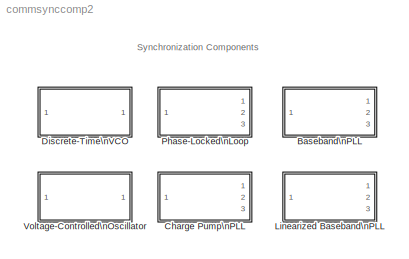
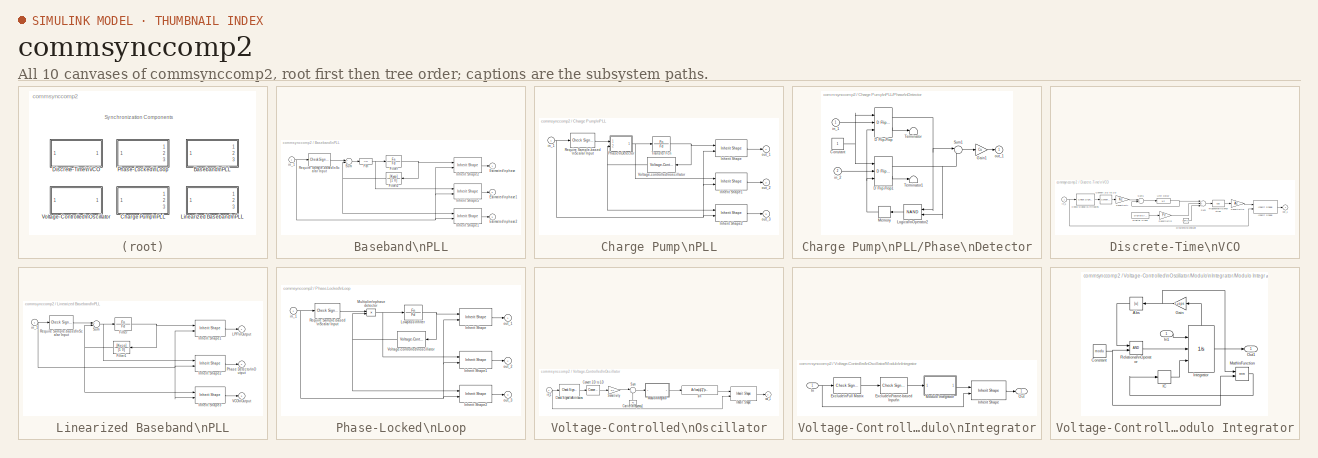
[diagram: thumbnail index - all 10 canvases of the model, root first then tree order]
MODEL commsynccomp2
KIND library
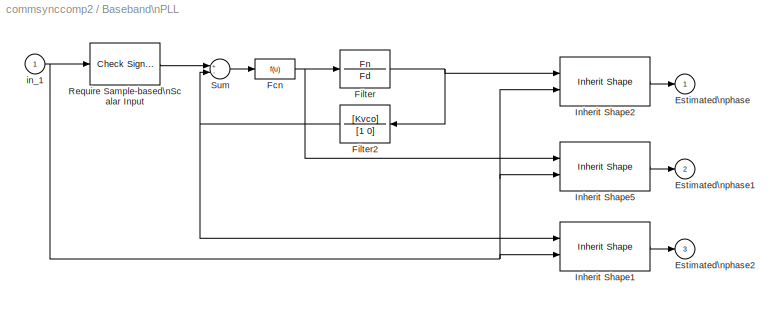
BLOCK [SubSystem] Baseband\nPLL
  MaskCallbackString = ||
  MaskDescription = Implement a baseband model of a phase-locked loop.  The three outputs are the outputs of the lowpass filter, the phase detector, and the voltage controlled oscillator (VCO).  The input must be a sample-based scalar signal.
  MaskDisplay = disp('Baseband\\nPLL')\nport_label('output',1,'Filt');\nport_label('output',2,'PD');\nport_label('output',3,'VCO');
  MaskEnableString = on,on,on
  MaskHelp = helpview(commbhelp)
  MaskIconFrame = on
  MaskIconOpaque = on
  MaskIconRotate = none
  MaskIconUnits = autoscale
  MaskInitialization = pi2=2*pi;
  MaskPromptString = Lowpass filter numerator:|Lowpass filter denominator:|VCO input sensitivity (Hz/V):
  MaskStyleString = edit,edit,edit
  MaskTabNameString = ,,
  MaskToolTipString = on,on,on
  MaskTunableValueString = on,on,on
  MaskType = Baseband PLL
  MaskValueString = [3.0002  0  40002]|[1   67.46   2270.9   40002]|1
  MaskVarAliasString = ,,
  MaskVariables = Fn=@1;Fd=@2;Kvco=@3;
  MaskVisibilityString = on,on,on
  MinAlgLoopOccurrences = off
  Ports = [1, 3]
  PropExecContextAcrossSSBoundary = on
  RTWSystemCode = Auto
  TreatAsAtomicUnit = off
BLOCK [Outport] Baseband\nPLL/Estimated\nphase
  BusOutputAsStruct = off
  IconDisplay = Port number
  InitialOutput = 0
BLOCK [Outport] Baseband\nPLL/Estimated\nphase1
  BusOutputAsStruct = off
  IconDisplay = Port number
  InitialOutput = 0
  Port = 2
BLOCK [Outport] Baseband\nPLL/Estimated\nphase2
  BusOutputAsStruct = off
  IconDisplay = Port number
  InitialOutput = 0
  Port = 3
BLOCK [Fcn] Baseband\nPLL/Fcn
BLOCK [TransferFcn] Baseband\nPLL/Filter
  Denominator = Fd
  Numerator = Fn
BLOCK [TransferFcn] Baseband\nPLL/Filter2
  Denominator = [1 0]
  Numerator = [Kvco]
BLOCK [Reference] Baseband\nPLL/Inherit Shape1  REF=commblksprivate/Inherit Shape
  Ports = [2, 1]
  SourceBlock = commblksprivate/Inherit Shape
  SourceType = Inherit Shape
BLOCK [Reference] Baseband\nPLL/Inherit Shape2  REF=commblksprivate/Inherit Shape
  Ports = [2, 1]
  SourceBlock = commblksprivate/Inherit Shape
  SourceType = Inherit Shape
BLOCK [Reference] Baseband\nPLL/Inherit Shape5  REF=commblksprivate/Inherit Shape
  Ports = [2, 1]
  SourceBlock = commblksprivate/Inherit Shape
  SourceType = Inherit Shape
BLOCK [Reference] Baseband\nPLL/Require Sample-based\nScalar Input  REF=dspsigattribs/Check Signal\nAttributes
  Complexity = Ignore
  DatatypeCheckMethod = Ignore
  DatatypeGeneral = Boolean
  Dimensions = Scalar (1-D or 2-D)
  DimsCheckMethod = Is...
  DtypeFixedSpecific = Any fixed-point
  DtypeFloatSpecific = Any floating-point
  DtypeIntSpecific = Any integer
  Frame = Sample-based
  Ports = [1, 1]
  SampleMode = Ignore
  SigAttribCheckMethod = Does not match attributes exactly
  SourceBlock = dspsigattribs/Check Signal\nAttributes
  SourceType = Check Signal Attributes
BLOCK [Sum] Baseband\nPLL/Sum
  Inputs = +-
  Ports = [2, 1]
BLOCK [Inport] Baseband\nPLL/in_1
  IconDisplay = Port number
  LatchInput = off
BLOCK [SubSystem] Charge Pump\nPLL
  MaskCallbackString = |||||
  MaskDescription = Implement a charge pump phase-locked loop using a digital phase detector.  The three outputs are the outputs of the lowpass filter, the phase detector, and the voltage controlled oscillator (VCO).  The input must be a sample-based scalar signal.
  MaskDisplay = disp('Charge\\nPump\\nPLL')\nport_label('output',1,'Filt');\nport_label('output',2,'PD');\nport_label('output',3,'VCO');
  MaskEnableString = on,on,on,on,on,on
  MaskHelp = helpview(commbhelp)
  MaskIconFrame = on
  MaskIconOpaque = on
  MaskIconRotate = none
  MaskIconUnits = autoscale
  MaskInitialization = Cu=1;
  MaskPromptString = Lowpass filter numerator:|Lowpass filter denominator:|VCO input sensitivity (Hz/V):|VCO quiescent frequency (Hz):|VCO initial phase (rad):|VCO output amplitude (V):
  MaskStyleString = edit,edit,edit,edit,edit,edit
  MaskTabNameString = ,,,,,
  MaskToolTipString = on,on,on,on,on,on
  MaskTunableValueString = on,on,on,on,on,on
  MaskType = Charge Pump PLL
  MaskValueString = [3.0002  0  40002]|[1   67.46   2270.9   40002]|1|100|0|1
  MaskVarAliasString = ,,,,,
  MaskVariables = Fn=@1;Fd=@2;Kvco=@3;Fc=@4;Ph=@5;Ac=@6;
  MaskVisibilityString = on,on,on,on,on,on
  MinAlgLoopOccurrences = off
  Ports = [1, 3]
  PropExecContextAcrossSSBoundary = on
  RTWSystemCode = Auto
  TreatAsAtomicUnit = off
BLOCK [Reference] Charge Pump\nPLL/Inherit Shape  REF=commblksprivate/Inherit Shape
  Ports = [2, 1]
  SourceBlock = commblksprivate/Inherit Shape
  SourceType = Inherit Shape
BLOCK [Reference] Charge Pump\nPLL/Inherit Shape1  REF=commblksprivate/Inherit Shape
  Ports = [2, 1]
  SourceBlock = commblksprivate/Inherit Shape
  SourceType = Inherit Shape
BLOCK [Reference] Charge Pump\nPLL/Inherit Shape2  REF=commblksprivate/Inherit Shape
  Ports = [2, 1]
  SourceBlock = commblksprivate/Inherit Shape
  SourceType = Inherit Shape
BLOCK [SubSystem] Charge Pump\nPLL/Phase\nDetector
  MaskCallbackString = |
  MaskDescription = Phase detector:
  MaskDisplay = disp('Phase\\nDetector')
  MaskEnableString = on,on
  MaskIconFrame = on
  MaskIconOpaque = on
  MaskIconRotate = none
  MaskIconUnits = autoscale
  MaskInitialization = Thre=@1;Cu=@2;lo=[0 0;0 1;1 0;1 0;0 1;0 1;0 0;0 0;1 0;0 0;1 0;0 0;1 0;0 0;0 0;0 0];
  MaskPromptString = Cross zero line threshold:|Charge pump current:
  MaskStyleString = edit,edit
  MaskTabNameString = ,
  MaskToolTipString = on,on
  MaskTunableValueString = on,on
  MaskType = Phase Detector
  MaskValueString = -sqrt(eps)|Cu
  MaskVarAliasString = ,
  MaskVisibilityString = on,on
  MinAlgLoopOccurrences = off
  Ports = [2, 1]
  PropExecContextAcrossSSBoundary = on
  RTWSystemCode = Auto
  TreatAsAtomicUnit = off
BLOCK [Constant] Charge Pump\nPLL/Phase\nDetector/Constant
  OutDataTypeMode = boolean
BLOCK [Reference] Charge Pump\nPLL/Phase\nDetector/D Flip-Flop  REF=simulink_extras/Flip Flops/D Flip-Flop
  Ports = [3, 2]
  SourceBlock = simulink_extras/Flip Flops/D Flip-Flop
  SourceType = DFlipFlop
BLOCK [Reference] Charge Pump\nPLL/Phase\nDetector/D Flip-Flop1  REF=simulink_extras/Flip Flops/D Flip-Flop
  Ports = [3, 2]
  SourceBlock = simulink_extras/Flip Flops/D Flip-Flop
  SourceType = DFlipFlop
BLOCK [Gain] Charge Pump\nPLL/Phase\nDetector/Gain1
  Gain = Cu
BLOCK [Logic] Charge Pump\nPLL/Phase\nDetector/Logical\nOperator2
  Operator = NAND
  Ports = [2, 1]
BLOCK [Memory] Charge Pump\nPLL/Phase\nDetector/Memory
BLOCK [Sum] Charge Pump\nPLL/Phase\nDetector/Sum1
  IconShape = round
  Inputs = |+-
  OutDataTypeMode = double
  Ports = [2, 1]
BLOCK [Terminator] Charge Pump\nPLL/Phase\nDetector/Terminator
BLOCK [Terminator] Charge Pump\nPLL/Phase\nDetector/Terminator1
BLOCK [Inport] Charge Pump\nPLL/Phase\nDetector/in_1
  IconDisplay = Port number
  LatchInput = off
BLOCK [Inport] Charge Pump\nPLL/Phase\nDetector/in_2
  IconDisplay = Port number
  LatchInput = off
  Port = 2
BLOCK [Outport] Charge Pump\nPLL/Phase\nDetector/out_1
  BusOutputAsStruct = off
  IconDisplay = Port number
  InitialOutput = 0
BLOCK [Reference] Charge Pump\nPLL/Require Sample-based \nScalar Input  REF=dspsigattribs/Check Signal\nAttributes
  Complexity = Ignore
  DatatypeCheckMethod = Ignore
  DatatypeGeneral = Boolean
  Dimensions = Scalar (1-D or 2-D)
  DimsCheckMethod = Is...
  DtypeFixedSpecific = Any fixed-point
  DtypeFloatSpecific = Any floating-point
  DtypeIntSpecific = Any integer
  Frame = Sample-based
  Ports = [1, 1]
  SampleMode = Ignore
  SigAttribCheckMethod = Does not match attributes exactly
  SourceBlock = dspsigattribs/Check Signal\nAttributes
  SourceType = Check Signal Attributes
BLOCK [TransferFcn] Charge Pump\nPLL/Transfer Fcn
  Denominator = Fd
  Numerator = Fn
BLOCK [Reference] Charge Pump\nPLL/Voltage-controlled\noscillator  REF=commcontsrc2/Voltage-Controlled\nOscillator
  Ac = Ac
  Fc = Fc
  Kc = Kvco
  Ph = Ph
  Ports = [1, 1]
  SourceBlock = commcontsrc2/Voltage-Controlled\nOscillator
  SourceType = Voltage-Controlled Oscillator
BLOCK [Inport] Charge Pump\nPLL/in_1
  IconDisplay = Port number
  LatchInput = off
BLOCK [Outport] Charge Pump\nPLL/out_1
  BusOutputAsStruct = off
  IconDisplay = Port number
  InitialOutput = 0
BLOCK [Outport] Charge Pump\nPLL/out_2
  BusOutputAsStruct = off
  IconDisplay = Port number
  InitialOutput = 0
  Port = 2
BLOCK [Outport] Charge Pump\nPLL/out_3
  BusOutputAsStruct = off
  IconDisplay = Port number
  InitialOutput = 0
  Port = 3
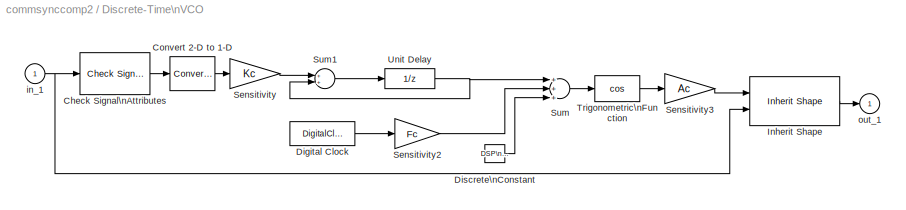
BLOCK [SubSystem] Discrete-Time\nVCO
  MaskCallbackString = ||||
  MaskDescription = Generate a discrete-time output signal whose frequency changes in response to the amplitude variations of the input signal. The input signal must be a scalar.
  MaskDisplay = disp('Discrete-Time\\nVCO')
  MaskEnableString = on,on,on,on,on
  MaskHelp = helpview(commbhelp)
  MaskIconFrame = on
  MaskIconOpaque = on
  MaskIconRotate = none
  MaskIconUnits = autoscale
  MaskInitialization = if ((length(Ac)~=1) | (length(Fc)~=1) | (length(Kc)~=1) | (length(Ph)~=1) | (length(ts)~=1))error('Mask parameters must be scalar values.');end;\npi2=2*pi;Kc=Kc*pi2*ts(1);Fc=Fc*pi2;
  MaskPromptString = Output amplitude (V):|Quiescent frequency (Hz):|Input sensitivity (Hz/V):|Initial phase (rad):|Sample time (s):
  MaskStyleString = edit,edit,edit,edit,edit
  MaskTabNameString = ,,,,
  MaskToolTipString = on,on,on,on,on
  MaskTunableValueString = on,on,on,on,on
  MaskType = Discrete-Time VCO
  MaskValueString = 1|10|1|0|.01
  MaskVarAliasString = ,,,,
  MaskVariables = Ac=@1;Fc=@2;Kc=@3;Ph=@4;ts=@5;
  MaskVisibilityString = on,on,on,on,on
  MinAlgLoopOccurrences = off
  Ports = [1, 1]
  PropExecContextAcrossSSBoundary = on
  RTWSystemCode = Auto
  TreatAsAtomicUnit = off
BLOCK [Reference] Discrete-Time\nVCO/Check Signal\nAttributes  REF=dspsigattribs/Check Signal\nAttributes
  Complexity = Ignore
  DatatypeCheckMethod = Ignore
  DatatypeGeneral = Boolean
  Dimensions = Scalar (1-D or 2-D)
  DimsCheckMethod = Is...
  DtypeFixedSpecific = Any fixed-point
  DtypeFloatSpecific = Any floating-point
  DtypeIntSpecific = Any integer
  Frame = Ignore
  Ports = [1, 1]
  SampleMode = Ignore
  SigAttribCheckMethod = Does not match attributes exactly
  SourceBlock = dspsigattribs/Check Signal\nAttributes
  SourceType = Check Signal Attributes
BLOCK [Reference] Discrete-Time\nVCO/Convert 2-D to 1-D  REF=dspsigattribs/Convert 2-D to 1-D
  Ports = [1, 1]
  SourceBlock = dspsigattribs/Convert 2-D to 1-D
  SourceType = Convert 2-D to 1-D
BLOCK [DigitalClock] Discrete-Time\nVCO/Digital Clock
  SampleTime = ts
BLOCK [Reference] Discrete-Time\nVCO/Discrete\nConstant  REF=dspsrcs4/DSP\nConstant
  FramebasedOutput = off
  InterpretAs1D = on
  Ports = [0, 1]
  SampleMode = Discrete
  SourceBlock = dspsrcs4/DSP\nConstant
  SourceType = DSP Constant
  Ts = ts
  Value = Ph
  additionalParams = off
  allowOverrides = on
  continuousOutput = Sample-based
  dataType = Inherit from 'Constant value'
  discreteOutput = Sample-based (interpret vectors as 1-D)
  fracBitsMode = Best precision
  framePeriod = ts
  numFracBits = 15
  sampTime = ts
  udDataType = sfix(16)
  wordLen = 16
BLOCK [Reference] Discrete-Time\nVCO/Inherit Shape  REF=commblksprivate/Inherit Shape
  Ports = [2, 1]
  SourceBlock = commblksprivate/Inherit Shape
  SourceType = Inherit Shape
BLOCK [Gain] Discrete-Time\nVCO/Sensitivity
  Gain = Kc
BLOCK [Gain] Discrete-Time\nVCO/Sensitivity2
  Gain = Fc
BLOCK [Gain] Discrete-Time\nVCO/Sensitivity3
  Gain = Ac
BLOCK [Sum] Discrete-Time\nVCO/Sum
  Inputs = +++
  Ports = [3, 1]
BLOCK [Sum] Discrete-Time\nVCO/Sum1
  Ports = [2, 1]
BLOCK [Trigonometry] Discrete-Time\nVCO/Trigonometric\nFunction
  Operator = cos
  Ports = [1, 1]
BLOCK [UnitDelay] Discrete-Time\nVCO/Unit Delay
  SampleTime = ts
BLOCK [Inport] Discrete-Time\nVCO/in_1
  IconDisplay = Port number
  LatchInput = off
BLOCK [Outport] Discrete-Time\nVCO/out_1
  BusOutputAsStruct = off
  IconDisplay = Port number
  InitialOutput = 0
BLOCK [SubSystem] Linearized Baseband\nPLL
  MaskCallbackString = ||
  MaskDescription = Implement a linearized baseband model of a phase-locked loop.  The three outputs are the outputs of the lowpass filter, the phase detector, and the voltage controlled oscillator (VCO).  The input must be a sample-based scalar signal.
  MaskDisplay = disp('Linearized\\nBaseband\\nPLL')\nport_label('output',1,'Filt');\nport_label('output',2,'PD');\nport_label('output',3,'VCO');
  MaskEnableString = on,on,on
  MaskHelp = helpview(commbhelp)
  MaskIconFrame = on
  MaskIconOpaque = on
  MaskIconRotate = none
  MaskIconUnits = autoscale
  MaskInitialization = pi2=2*pi;
  MaskPromptString = Lowpass filter numerator:|Lowpass filter denominator:|VCO input sensitivity (Hz/V):
  MaskStyleString = edit,edit,edit
  MaskTabNameString = ,,
  MaskToolTipString = on,on,on
  MaskTunableValueString = on,on,on
  MaskType = Linearized Baseband PLL
  MaskValueString = [3.0002  0  40002]|[1   67.46   2270.9   40002]|1
  MaskVarAliasString = ,,
  MaskVariables = Fn=@1;Fd=@2;Kvco=@3;
  MaskVisibilityString = on,on,on
  MinAlgLoopOccurrences = off
  Ports = [1, 3]
  PropExecContextAcrossSSBoundary = on
  RTWSystemCode = Auto
  TreatAsAtomicUnit = off
BLOCK [TransferFcn] Linearized Baseband\nPLL/Filter
  Denominator = Fd
  Numerator = Fn
BLOCK [TransferFcn] Linearized Baseband\nPLL/Filter1
  Denominator = [1 0]
  Numerator = [Kvco]
BLOCK [Reference] Linearized Baseband\nPLL/Inherit Shape1  REF=commblksprivate/Inherit Shape
  Ports = [2, 1]
  SourceBlock = commblksprivate/Inherit Shape
  SourceType = Inherit Shape
BLOCK [Reference] Linearized Baseband\nPLL/Inherit Shape2  REF=commblksprivate/Inherit Shape
  Ports = [2, 1]
  SourceBlock = commblksprivate/Inherit Shape
  SourceType = Inherit Shape
BLOCK [Reference] Linearized Baseband\nPLL/Inherit Shape3  REF=commblksprivate/Inherit Shape
  Ports = [2, 1]
  SourceBlock = commblksprivate/Inherit Shape
  SourceType = Inherit Shape
BLOCK [Outport] Linearized Baseband\nPLL/LPF\nOutput
  BusOutputAsStruct = off
  IconDisplay = Port number
  InitialOutput = 0
BLOCK [Outport] Linearized Baseband\nPLL/Phase Detector\nOutput
  BusOutputAsStruct = off
  IconDisplay = Port number
  InitialOutput = 0
  Port = 2
BLOCK [Reference] Linearized Baseband\nPLL/Require Sample-based\nScalar Input  REF=dspsigattribs/Check Signal\nAttributes
  Complexity = Ignore
  DatatypeCheckMethod = Ignore
  DatatypeGeneral = Boolean
  Dimensions = Scalar (1-D or 2-D)
  DimsCheckMethod = Is...
  DtypeFixedSpecific = Any fixed-point
  DtypeFloatSpecific = Any floating-point
  DtypeIntSpecific = Any integer
  Frame = Sample-based
  Ports = [1, 1]
  SampleMode = Ignore
  SigAttribCheckMethod = Does not match attributes exactly
  SourceBlock = dspsigattribs/Check Signal\nAttributes
  SourceType = Check Signal Attributes
BLOCK [Sum] Linearized Baseband\nPLL/Sum
  Inputs = +-
  Ports = [2, 1]
BLOCK [Outport] Linearized Baseband\nPLL/VCO\nOutput
  BusOutputAsStruct = off
  IconDisplay = Port number
  InitialOutput = 0
  Port = 3
BLOCK [Inport] Linearized Baseband\nPLL/in_1
  IconDisplay = Port number
  LatchInput = off
BLOCK [SubSystem] Phase-Locked\nLoop
  MaskCallbackString = |||||
  MaskDescription = Implement a phase-locked loop.  The three outputs are:  the lowpass filter output, the phase detector output, and the voltage controlled oscillator (VCO) output.  The input must be a sample-based scalar signal.
  MaskDisplay = disp('PLL')\nport_label('output',1,'Filt');\nport_label('output',2,'PD');\nport_label('output',3,'VCO');
  MaskEnableString = on,on,on,on,on,on
  MaskHelp = helpview(commbhelp)
  MaskIconFrame = on
  MaskIconOpaque = on
  MaskIconRotate = none
  MaskIconUnits = autoscale
  MaskPromptString = Lowpass filter numerator:|Lowpass filter denominator:|VCO input sensitivity (Hz/V):|VCO quiescent frequency (Hz):|VCO initial phase (rad):|VCO output amplitude (V):
  MaskStyleString = edit,edit,edit,edit,edit,edit
  MaskTabNameString = ,,,,,
  MaskToolTipString = on,on,on,on,on,on
  MaskTunableValueString = on,on,on,on,on,on
  MaskType = Phase-Locked Loop
  MaskValueString = [3.0002  0  40002]|[1   67.46   2270.9   40002]|1|100|0|1
  MaskVarAliasString = ,,,,,
  MaskVariables = Fn=@1;Fd=@2;Kvco=@3;Fc=@4;Ph=@5;Ac=@6;
  MaskVisibilityString = on,on,on,on,on,on
  MinAlgLoopOccurrences = off
  Ports = [1, 3]
  PropExecContextAcrossSSBoundary = on
  RTWSystemCode = Auto
  TreatAsAtomicUnit = off
BLOCK [Reference] Phase-Locked\nLoop/Inherit Shape  REF=commblksprivate/Inherit Shape
  Ports = [2, 1]
  SourceBlock = commblksprivate/Inherit Shape
  SourceType = Inherit Shape
BLOCK [Reference] Phase-Locked\nLoop/Inherit Shape1  REF=commblksprivate/Inherit Shape
  Ports = [2, 1]
  SourceBlock = commblksprivate/Inherit Shape
  SourceType = Inherit Shape
BLOCK [Reference] Phase-Locked\nLoop/Inherit Shape2  REF=commblksprivate/Inherit Shape
  Ports = [2, 1]
  SourceBlock = commblksprivate/Inherit Shape
  SourceType = Inherit Shape
BLOCK [TransferFcn] Phase-Locked\nLoop/Lowpass\nfilter
  Denominator = Fd
  Numerator = Fn
BLOCK [Product] Phase-Locked\nLoop/Multiplier\nphase detector
  Ports = [2, 1]
  RndMeth = Floor
BLOCK [Reference] Phase-Locked\nLoop/Require Sample-based \nScalar Input  REF=dspsigattribs/Check Signal\nAttributes
  Complexity = Ignore
  DatatypeCheckMethod = Ignore
  DatatypeGeneral = Boolean
  Dimensions = Scalar (1-D or 2-D)
  DimsCheckMethod = Is...
  DtypeFixedSpecific = Any fixed-point
  DtypeFloatSpecific = Any floating-point
  DtypeIntSpecific = Any integer
  Frame = Sample-based
  Ports = [1, 1]
  SampleMode = Ignore
  SigAttribCheckMethod = Does not match attributes exactly
  SourceBlock = dspsigattribs/Check Signal\nAttributes
  SourceType = Check Signal Attributes
BLOCK [Reference] Phase-Locked\nLoop/Voltage-controlled\noscillator  REF=commcontsrc2/Voltage-Controlled\nOscillator
  Ac = Ac
  Fc = Fc
  Kc = Kvco
  Ph = Ph
  Ports = [1, 1]
  SourceBlock = commcontsrc2/Voltage-Controlled\nOscillator
  SourceType = Voltage-Controlled Oscillator
BLOCK [Inport] Phase-Locked\nLoop/in_1
  IconDisplay = Port number
  LatchInput = off
BLOCK [Outport] Phase-Locked\nLoop/out_1
  BusOutputAsStruct = off
  IconDisplay = Port number
  InitialOutput = 0
BLOCK [Outport] Phase-Locked\nLoop/out_2
  BusOutputAsStruct = off
  IconDisplay = Port number
  InitialOutput = 0
  Port = 2
BLOCK [Outport] Phase-Locked\nLoop/out_3
  BusOutputAsStruct = off
  IconDisplay = Port number
  InitialOutput = 0
  Port = 3
BLOCK [SubSystem] Voltage-Controlled\nOscillator
  MaskCallbackString = |||
  MaskDescription = Generate a continuous-time output signal whose frequency changes in response to the amplitude variations of the input signal. The input signal must be a sample-based scalar.
  MaskDisplay = disp('VCO')
  MaskEnableString = on,on,on,on
  MaskHelp = helpview(commbhelp)
  MaskIconFrame = on
  MaskIconOpaque = on
  MaskIconRotate = none
  MaskIconUnits = autoscale
  MaskInitialization = if ((length(Ac)~=1) | (length(Fc)~=1) | (length(Ph)~=1) | (length(Kc)~=1) )error('Mask parameters must be scalar values.');end;\npi2=2*pi;
  MaskPromptString = Output amplitude (V):|Quiescent frequency (Hz):|Input sensitivity (Hz/V):|Initial phase (rad):
  MaskStyleString = edit,edit,edit,edit
  MaskTabNameString = ,,,
  MaskToolTipString = on,on,on,on
  MaskTunableValueString = on,on,on,on
  MaskType = Voltage-Controlled Oscillator
  MaskValueString = 1|10|1|0
  MaskVarAliasString = ,,,
  MaskVariables = Ac=@1;Fc=@2;Kc=@3;Ph=@4;
  MaskVisibilityString = on,on,on,on
  MinAlgLoopOccurrences = off
  Ports = [1, 1]
  PropExecContextAcrossSSBoundary = on
  RTWSystemCode = Auto
  TreatAsAtomicUnit = off
BLOCK [Constant] Voltage-Controlled\nOscillator/Carrier\nfrequency1
  Value = Fc
BLOCK [Reference] Voltage-Controlled\nOscillator/Check Signal\nAttributes  REF=dspsigattribs/Check Signal\nAttributes
  Complexity = Ignore
  DatatypeCheckMethod = Ignore
  DatatypeGeneral = Boolean
  Dimensions = Scalar (1-D or 2-D)
  DimsCheckMethod = Is...
  DtypeFixedSpecific = Any fixed-point
  DtypeFloatSpecific = Any floating-point
  DtypeIntSpecific = Any integer
  Frame = Sample-based
  Ports = [1, 1]
  SampleMode = Ignore
  SigAttribCheckMethod = Does not match attributes exactly
  SourceBlock = dspsigattribs/Check Signal\nAttributes
  SourceType = Check Signal Attributes
BLOCK [Reference] Voltage-Controlled\nOscillator/Convert 2-D to 1-D  REF=dspsigattribs/Convert 2-D to 1-D
  Ports = [1, 1]
  SourceBlock = dspsigattribs/Convert 2-D to 1-D
  SourceType = Convert 2-D to 1-D
BLOCK [Reference] Voltage-Controlled\nOscillator/Inherit Shape  REF=commblksprivate/Inherit Shape
  Ports = [2, 1]
  SourceBlock = commblksprivate/Inherit Shape
  SourceType = Inherit Shape
BLOCK [SubSystem] Voltage-Controlled\nOscillator/Modulo\nIntegrator
  MaskCallbackString = |
  MaskDescription = Integrate the input signal in continuous time and then uses the Absolute value bound parameter, K, to produce output strictly between -K and K. The block uses the rem function in MATLAB.\n\nThe input must be sample-based.
  MaskDisplay = disp('Modulo\\nIntegrator')
  MaskEnableString = on,on
  MaskHelp = helpview(commbhelp)
  MaskIconFrame = on
  MaskIconOpaque = on
  MaskIconRotate = none
  MaskIconUnits = autoscale
  MaskInitialization = [modu, init]=commblkmodint(gcb);\n
  MaskPromptString = Absolute value bound:|Initial condition:
  MaskStyleString = edit,edit
  MaskTabNameString = ,
  MaskToolTipString = on,on
  MaskTunableValueString = on,on
  MaskType = Modulo Integrator
  MaskValueString = 1|0
  MaskVarAliasString = ,
  MaskVariables = modu=@1;init=@2;
  MaskVisibilityString = on,on
  MinAlgLoopOccurrences = off
  Ports = [1, 1]
  PropExecContextAcrossSSBoundary = on
  RTWSystemCode = Auto
  TreatAsAtomicUnit = off
BLOCK [Reference] Voltage-Controlled\nOscillator/Modulo\nIntegrator/Exclude\nFrame-based Input\n  REF=dspsigattribs/Check Signal\nAttributes
  Complexity = Ignore
  DatatypeCheckMethod = Ignore
  DatatypeGeneral = Boolean
  Dimensions = Scalar (1-D or 2-D)
  DimsCheckMethod = Ignore
  DtypeFixedSpecific = Any fixed-point
  DtypeFloatSpecific = Any floating-point
  DtypeIntSpecific = Any integer
  Frame = Frame-based
  Ports = [1, 1]
  SampleMode = Ignore
  SigAttribCheckMethod = Matches attributes exactly
  SourceBlock = dspsigattribs/Check Signal\nAttributes
  SourceType = Check Signal Attributes
BLOCK [Reference] Voltage-Controlled\nOscillator/Modulo\nIntegrator/Exclude\nFull Matrix  REF=dspsigattribs/Check Signal\nAttributes
  Complexity = Ignore
  DatatypeCheckMethod = Ignore
  DatatypeGeneral = Boolean
  Dimensions = Full matrix (2-D)
  DimsCheckMethod = Is...
  DtypeFixedSpecific = Any fixed-point
  DtypeFloatSpecific = Any floating-point
  DtypeIntSpecific = Any integer
  Frame = Ignore
  Ports = [1, 1]
  SampleMode = Ignore
  SigAttribCheckMethod = Matches attributes exactly
  SourceBlock = dspsigattribs/Check Signal\nAttributes
  SourceType = Check Signal Attributes
BLOCK [Inport] Voltage-Controlled\nOscillator/Modulo\nIntegrator/In
  IconDisplay = Port number
  LatchInput = off
BLOCK [Reference] Voltage-Controlled\nOscillator/Modulo\nIntegrator/Inherit Shape  REF=commblksprivate/Inherit Shape
  Ports = [2, 1]
  SourceBlock = commblksprivate/Inherit Shape
  SourceType = Inherit Shape
BLOCK [SubSystem] Voltage-Controlled\nOscillator/Modulo\nIntegrator/Modulo Integrator
  MinAlgLoopOccurrences = off
  Ports = [1, 1]
  PropExecContextAcrossSSBoundary = on
  RTWSystemCode = Auto
  TreatAsAtomicUnit = off
BLOCK [Abs] Voltage-Controlled\nOscillator/Modulo\nIntegrator/Modulo Integrator/Abs
BLOCK [Constant] Voltage-Controlled\nOscillator/Modulo\nIntegrator/Modulo Integrator/Constant
  Value = modu
BLOCK [Gain] Voltage-Controlled\nOscillator/Modulo\nIntegrator/Modulo Integrator/Gain
  Gain = 1+eps
BLOCK [InitialCondition] Voltage-Controlled\nOscillator/Modulo\nIntegrator/Modulo Integrator/IC
  Value = init
BLOCK [Inport] Voltage-Controlled\nOscillator/Modulo\nIntegrator/Modulo Integrator/In1
  IconDisplay = Port number
  LatchInput = off
BLOCK [Integrator] Voltage-Controlled\nOscillator/Modulo\nIntegrator/Modulo Integrator/Integrator
  ExternalReset = rising
  InitialConditionSource = external
  LowerSaturationLimit = 0
  Ports = [3, 1, 0, 0, 1]
  ShowStatePort = on
  UpperSaturationLimit = 1
BLOCK [Math] Voltage-Controlled\nOscillator/Modulo\nIntegrator/Modulo Integrator/Math\nFunction
  Operator = rem
  Ports = [2, 1]
BLOCK [Outport] Voltage-Controlled\nOscillator/Modulo\nIntegrator/Modulo Integrator/Out1
  BusOutputAsStruct = off
  IconDisplay = Port number
BLOCK [RelationalOperator] Voltage-Controlled\nOscillator/Modulo\nIntegrator/Modulo Integrator/Relational\nOperator
BLOCK [Outport] Voltage-Controlled\nOscillator/Modulo\nIntegrator/Out
  BusOutputAsStruct = off
  IconDisplay = Port number
BLOCK [Gain] Voltage-Controlled\nOscillator/Sensitivity
  Gain = Kc
BLOCK [Sum] Voltage-Controlled\nOscillator/Sum
  IconShape = round
  Inputs = |++
  Ports = [2, 1]
BLOCK [Inport] Voltage-Controlled\nOscillator/in_1
  IconDisplay = Port number
  LatchInput = off
BLOCK [Outport] Voltage-Controlled\nOscillator/out_1
  BusOutputAsStruct = off
  IconDisplay = Port number
  InitialOutput = 0
BLOCK [Fcn] Voltage-Controlled\nOscillator/sin
  Expr = Ac*cos(u[1]*pi2+Ph)
ANNOTATION (root): Synchronization Components
NET Baseband\nPLL/Fcn:1 -> Baseband\nPLL/Filter:1, Baseband\nPLL/Inherit Shape5:1
NET Baseband\nPLL/Filter2:1 -> Baseband\nPLL/Inherit Shape1:1, Baseband\nPLL/Sum:2
NET Baseband\nPLL/Filter:1 -> Baseband\nPLL/Filter2:1, Baseband\nPLL/Inherit Shape2:1
LINE Baseband\nPLL/Inherit Shape1:1 -> Baseband\nPLL/Estimated\nphase2:1
LINE Baseband\nPLL/Inherit Shape2:1 -> Baseband\nPLL/Estimated\nphase:1
LINE Baseband\nPLL/Inherit Shape5:1 -> Baseband\nPLL/Estimated\nphase1:1
LINE Baseband\nPLL/Require Sample-based\nScalar Input:1 -> Baseband\nPLL/Sum:1
LINE Baseband\nPLL/Sum:1 -> Baseband\nPLL/Fcn:1
NET Baseband\nPLL/in_1:1 -> Baseband\nPLL/Inherit Shape1:2, Baseband\nPLL/Inherit Shape2:2, Baseband\nPLL/Inherit Shape5:2, Baseband\nPLL/Require Sample-based\nScalar Input:1
LINE Charge Pump\nPLL/Inherit Shape1:1 -> Charge Pump\nPLL/out_2:1
LINE Charge Pump\nPLL/Inherit Shape2:1 -> Charge Pump\nPLL/out_3:1
LINE Charge Pump\nPLL/Inherit Shape:1 -> Charge Pump\nPLL/out_1:1
NET Charge Pump\nPLL/Phase\nDetector/Constant:1 -> Charge Pump\nPLL/Phase\nDetector/D Flip-Flop1:1, Charge Pump\nPLL/Phase\nDetector/D Flip-Flop:1
NET Charge Pump\nPLL/Phase\nDetector/D Flip-Flop1:1 -> Charge Pump\nPLL/Phase\nDetector/Logical\nOperator2:2, Charge Pump\nPLL/Phase\nDetector/Sum1:2
LINE Charge Pump\nPLL/Phase\nDetector/D Flip-Flop1:2 -> Charge Pump\nPLL/Phase\nDetector/Terminator1:1
NET Charge Pump\nPLL/Phase\nDetector/D Flip-Flop:1 -> Charge Pump\nPLL/Phase\nDetector/Logical\nOperator2:1, Charge Pump\nPLL/Phase\nDetector/Sum1:1
LINE Charge Pump\nPLL/Phase\nDetector/D Flip-Flop:2 -> Charge Pump\nPLL/Phase\nDetector/Terminator:1
LINE Charge Pump\nPLL/Phase\nDetector/Gain1:1 -> Charge Pump\nPLL/Phase\nDetector/out_1:1
LINE Charge Pump\nPLL/Phase\nDetector/Logical\nOperator2:1 -> Charge Pump\nPLL/Phase\nDetector/Memory:1
NET Charge Pump\nPLL/Phase\nDetector/Memory:1 -> Charge Pump\nPLL/Phase\nDetector/D Flip-Flop1:3, Charge Pump\nPLL/Phase\nDetector/D Flip-Flop:3
LINE Charge Pump\nPLL/Phase\nDetector/Sum1:1 -> Charge Pump\nPLL/Phase\nDetector/Gain1:1
LINE Charge Pump\nPLL/Phase\nDetector/in_1:1 -> Charge Pump\nPLL/Phase\nDetector/D Flip-Flop:2
LINE Charge Pump\nPLL/Phase\nDetector/in_2:1 -> Charge Pump\nPLL/Phase\nDetector/D Flip-Flop1:2
NET Charge Pump\nPLL/Phase\nDetector:1 -> Charge Pump\nPLL/Inherit Shape1:1, Charge Pump\nPLL/Transfer Fcn:1
LINE Charge Pump\nPLL/Require Sample-based \nScalar Input:1 -> Charge Pump\nPLL/Phase\nDetector:1
NET Charge Pump\nPLL/Transfer Fcn:1 -> Charge Pump\nPLL/Inherit Shape:1, Charge Pump\nPLL/Voltage-controlled\noscillator:1
NET Charge Pump\nPLL/Voltage-controlled\noscillator:1 -> Charge Pump\nPLL/Inherit Shape2:1, Charge Pump\nPLL/Phase\nDetector:2
NET Charge Pump\nPLL/in_1:1 -> Charge Pump\nPLL/Inherit Shape1:2, Charge Pump\nPLL/Inherit Shape2:2, Charge Pump\nPLL/Inherit Shape:2, Charge Pump\nPLL/Require Sample-based \nScalar Input:1
LINE Discrete-Time\nVCO/Check Signal\nAttributes:1 -> Discrete-Time\nVCO/Convert 2-D to 1-D:1
LINE Discrete-Time\nVCO/Convert 2-D to 1-D:1 -> Discrete-Time\nVCO/Sensitivity:1
LINE Discrete-Time\nVCO/Digital Clock:1 -> Discrete-Time\nVCO/Sensitivity2:1
LINE Discrete-Time\nVCO/Discrete\nConstant:1 -> Discrete-Time\nVCO/Sum:3
LINE Discrete-Time\nVCO/Inherit Shape:1 -> Discrete-Time\nVCO/out_1:1
LINE Discrete-Time\nVCO/Sensitivity2:1 -> Discrete-Time\nVCO/Sum:2
LINE Discrete-Time\nVCO/Sensitivity3:1 -> Discrete-Time\nVCO/Inherit Shape:1
LINE Discrete-Time\nVCO/Sensitivity:1 -> Discrete-Time\nVCO/Sum1:1
LINE Discrete-Time\nVCO/Sum1:1 -> Discrete-Time\nVCO/Unit Delay:1
LINE Discrete-Time\nVCO/Sum:1 -> Discrete-Time\nVCO/Trigonometric\nFunction:1
LINE Discrete-Time\nVCO/Trigonometric\nFunction:1 -> Discrete-Time\nVCO/Sensitivity3:1
NET Discrete-Time\nVCO/Unit Delay:1 -> Discrete-Time\nVCO/Sum1:2, Discrete-Time\nVCO/Sum:1
NET Discrete-Time\nVCO/in_1:1 -> Discrete-Time\nVCO/Check Signal\nAttributes:1, Discrete-Time\nVCO/Inherit Shape:2
NET Linearized Baseband\nPLL/Filter1:1 -> Linearized Baseband\nPLL/Inherit Shape3:1, Linearized Baseband\nPLL/Sum:2
NET Linearized Baseband\nPLL/Filter:1 -> Linearized Baseband\nPLL/Filter1:1, Linearized Baseband\nPLL/Inherit Shape1:1
LINE Linearized Baseband\nPLL/Inherit Shape1:1 -> Linearized Baseband\nPLL/LPF\nOutput:1
LINE Linearized Baseband\nPLL/Inherit Shape2:1 -> Linearized Baseband\nPLL/Phase Detector\nOutput:1
LINE Linearized Baseband\nPLL/Inherit Shape3:1 -> Linearized Baseband\nPLL/VCO\nOutput:1
LINE Linearized Baseband\nPLL/Require Sample-based\nScalar Input:1 -> Linearized Baseband\nPLL/Sum:1
NET Linearized Baseband\nPLL/Sum:1 -> Linearized Baseband\nPLL/Filter:1, Linearized Baseband\nPLL/Inherit Shape2:1
NET Linearized Baseband\nPLL/in_1:1 -> Linearized Baseband\nPLL/Inherit Shape1:2, Linearized Baseband\nPLL/Inherit Shape2:2, Linearized Baseband\nPLL/Inherit Shape3:2, Linearized Baseband\nPLL/Require Sample-based\nScalar Input:1
LINE Phase-Locked\nLoop/Inherit Shape1:1 -> Phase-Locked\nLoop/out_2:1
LINE Phase-Locked\nLoop/Inherit Shape2:1 -> Phase-Locked\nLoop/out_3:1
LINE Phase-Locked\nLoop/Inherit Shape:1 -> Phase-Locked\nLoop/out_1:1
NET Phase-Locked\nLoop/Lowpass\nfilter:1 -> Phase-Locked\nLoop/Inherit Shape:1, Phase-Locked\nLoop/Voltage-controlled\noscillator:1
NET Phase-Locked\nLoop/Multiplier\nphase detector:1 -> Phase-Locked\nLoop/Inherit Shape1:1, Phase-Locked\nLoop/Lowpass\nfilter:1
LINE Phase-Locked\nLoop/Require Sample-based \nScalar Input:1 -> Phase-Locked\nLoop/Multiplier\nphase detector:1
NET Phase-Locked\nLoop/Voltage-controlled\noscillator:1 -> Phase-Locked\nLoop/Inherit Shape2:1, Phase-Locked\nLoop/Multiplier\nphase detector:2
NET Phase-Locked\nLoop/in_1:1 -> Phase-Locked\nLoop/Inherit Shape1:2, Phase-Locked\nLoop/Inherit Shape2:2, Phase-Locked\nLoop/Inherit Shape:2, Phase-Locked\nLoop/Require Sample-based \nScalar Input:1
LINE Voltage-Controlled\nOscillator/Carrier\nfrequency1:1 -> Voltage-Controlled\nOscillator/Sum:2
LINE Voltage-Controlled\nOscillator/Check Signal\nAttributes:1 -> Voltage-Controlled\nOscillator/Convert 2-D to 1-D:1
LINE Voltage-Controlled\nOscillator/Convert 2-D to 1-D:1 -> Voltage-Controlled\nOscillator/Sensitivity:1
LINE Voltage-Controlled\nOscillator/Inherit Shape:1 -> Voltage-Controlled\nOscillator/out_1:1
LINE Voltage-Controlled\nOscillator/Modulo\nIntegrator/Exclude\nFrame-based Input\n:1 -> Voltage-Controlled\nOscillator/Modulo\nIntegrator/Modulo Integrator:1
LINE Voltage-Controlled\nOscillator/Modulo\nIntegrator/Exclude\nFull Matrix:1 -> Voltage-Controlled\nOscillator/Modulo\nIntegrator/Exclude\nFrame-based Input\n:1
NET Voltage-Controlled\nOscillator/Modulo\nIntegrator/In:1 -> Voltage-Controlled\nOscillator/Modulo\nIntegrator/Exclude\nFull Matrix:1, Voltage-Controlled\nOscillator/Modulo\nIntegrator/Inherit Shape:2
LINE Voltage-Controlled\nOscillator/Modulo\nIntegrator/Inherit Shape:1 -> Voltage-Controlled\nOscillator/Modulo\nIntegrator/Out:1
LINE Voltage-Controlled\nOscillator/Modulo\nIntegrator/Modulo Integrator/Abs:1 -> Voltage-Controlled\nOscillator/Modulo\nIntegrator/Modulo Integrator/Relational\nOperator:1
NET Voltage-Controlled\nOscillator/Modulo\nIntegrator/Modulo Integrator/Constant:1 -> Voltage-Controlled\nOscillator/Modulo\nIntegrator/Modulo Integrator/Math\nFunction:2, Voltage-Controlled\nOscillator/Modulo\nIntegrator/Modulo Integrator/Relational\nOperator:2
NET Voltage-Controlled\nOscillator/Modulo\nIntegrator/Modulo Integrator/Gain:1 -> Voltage-Controlled\nOscillator/Modulo\nIntegrator/Modulo Integrator/Abs:1, Voltage-Controlled\nOscillator/Modulo\nIntegrator/Modulo Integrator/Math\nFunction:1
LINE Voltage-Controlled\nOscillator/Modulo\nIntegrator/Modulo Integrator/IC:1 -> Voltage-Controlled\nOscillator/Modulo\nIntegrator/Modulo Integrator/Integrator:3
LINE Voltage-Controlled\nOscillator/Modulo\nIntegrator/Modulo Integrator/In1:1 -> Voltage-Controlled\nOscillator/Modulo\nIntegrator/Modulo Integrator/Integrator:1
LINE Voltage-Controlled\nOscillator/Modulo\nIntegrator/Modulo Integrator/Integrator:1 -> Voltage-Controlled\nOscillator/Modulo\nIntegrator/Modulo Integrator/Out1:1
LINE Voltage-Controlled\nOscillator/Modulo\nIntegrator/Modulo Integrator/Integrator:state -> Voltage-Controlled\nOscillator/Modulo\nIntegrator/Modulo Integrator/Gain:1
LINE Voltage-Controlled\nOscillator/Modulo\nIntegrator/Modulo Integrator/Math\nFunction:1 -> Voltage-Controlled\nOscillator/Modulo\nIntegrator/Modulo Integrator/IC:1
LINE Voltage-Controlled\nOscillator/Modulo\nIntegrator/Modulo Integrator/Relational\nOperator:1 -> Voltage-Controlled\nOscillator/Modulo\nIntegrator/Modulo Integrator/Integrator:2
LINE Voltage-Controlled\nOscillator/Modulo\nIntegrator/Modulo Integrator:1 -> Voltage-Controlled\nOscillator/Modulo\nIntegrator/Inherit Shape:1
LINE Voltage-Controlled\nOscillator/Modulo\nIntegrator:1 -> Voltage-Controlled\nOscillator/sin:1
LINE Voltage-Controlled\nOscillator/Sensitivity:1 -> Voltage-Controlled\nOscillator/Sum:1
LINE Voltage-Controlled\nOscillator/Sum:1 -> Voltage-Controlled\nOscillator/Modulo\nIntegrator:1
NET Voltage-Controlled\nOscillator/in_1:1 -> Voltage-Controlled\nOscillator/Check Signal\nAttributes:1, Voltage-Controlled\nOscillator/Inherit Shape:2
LINE Voltage-Controlled\nOscillator/sin:1 -> Voltage-Controlled\nOscillator/Inherit Shape:1
note: NET lines group one-source signal fan-out (src -> all destinations, sorted); 1:1 wires keep LINE
